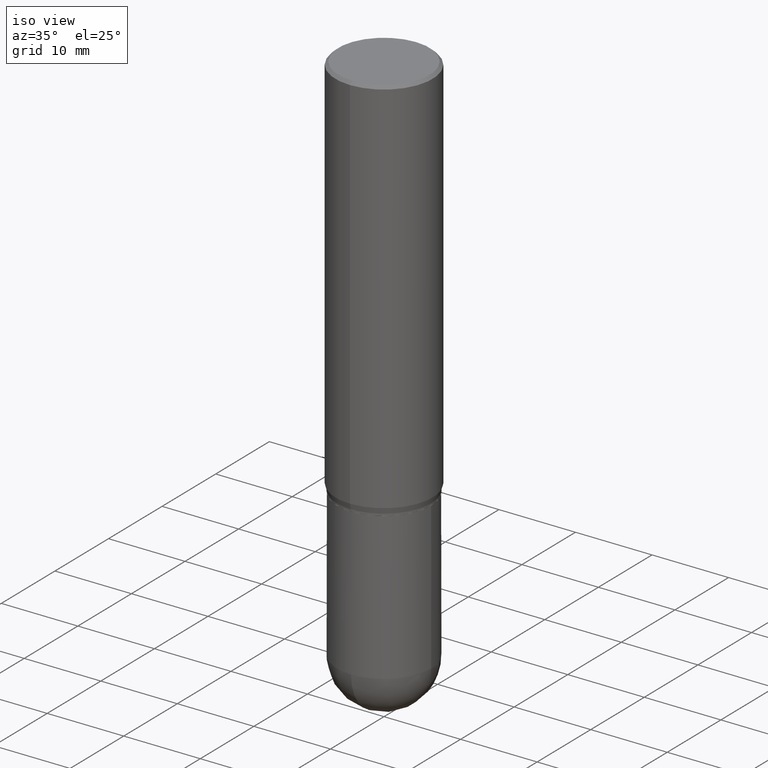
[diagram: clean part render]
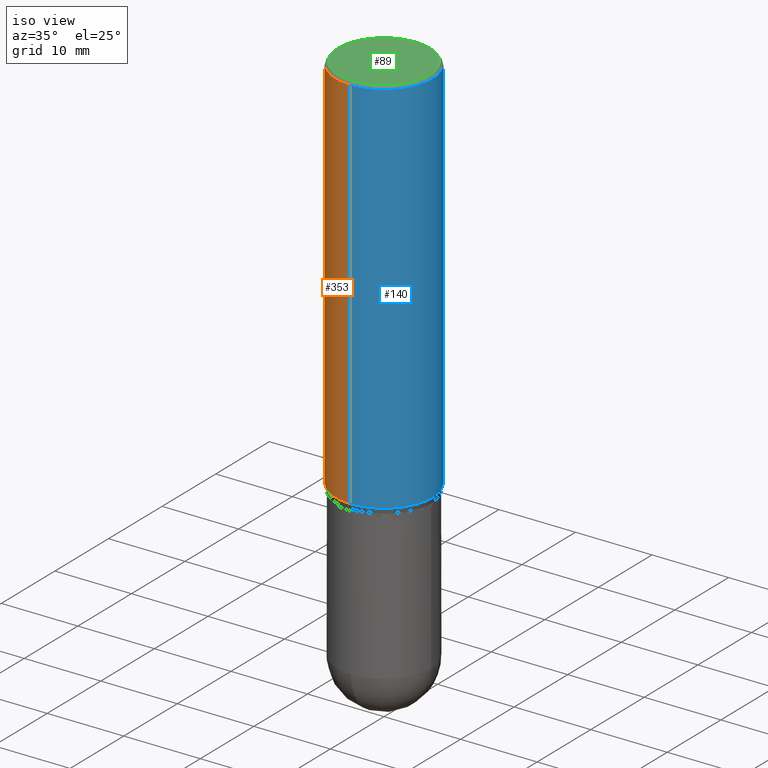
[diagram: same view with three faces highlighted in distinct colors, each labeled with its STEP entity id]
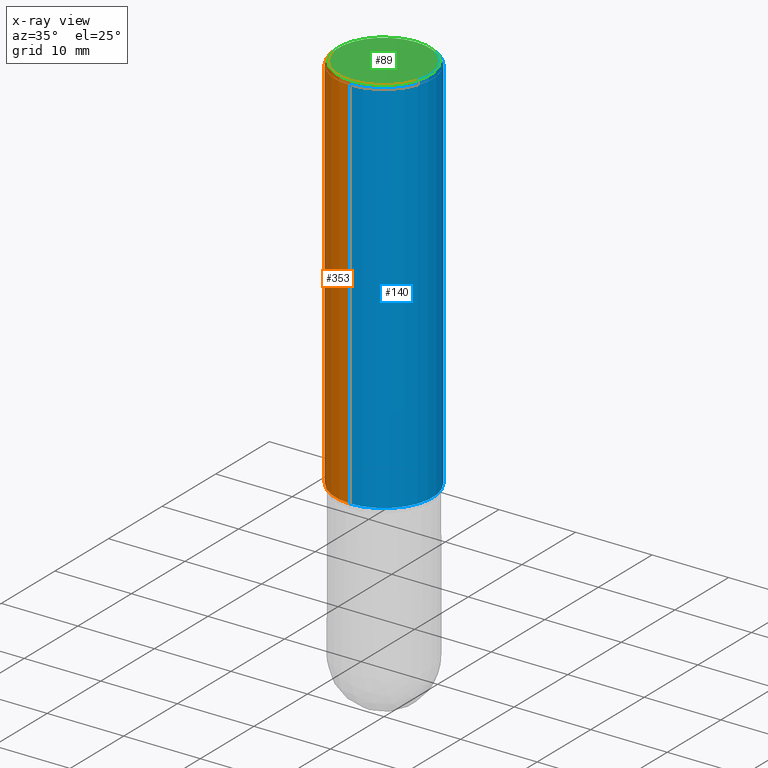
[diagram: x-ray of the same camera — body ghosted, the three highlighted faces saturated]
A machine part, iso view with three faces highlighted in distinct colors.
The next image is the same camera in x-ray (body ghosted, the three faces saturated) — at least one of them is partly hidden behind the body in this view.
Their STEP definitions:

[orange] entity #353 — the highlighted cylindrical surface (partial cylindrical patch) has radius 6.35 mm, axis along (-0, 0, 1).
#16 = DIRECTION ( 'NONE',  ( -6.982962677686265922E-15, -1.000000000000000000, 3.491643216902136408E-15 ) ) ;
#50 = CARTESIAN_POINT ( 'NONE',  ( 3.668333458171462749E-31, -5.237035484435728604E-17, -0.01500000000000025445 ) ) ;
#53 = DIRECTION ( 'NONE',  ( -2.445555638780933781E-29, 3.491356989623759642E-15, 1.000000000000000000 ) ) ;
#54 = DIRECTION ( 'NONE',  ( -6.982962677686265922E-15, -1.000000000000000000, 3.278217592397115862E-15 ) ) ;
#63 = ORIENTED_EDGE ( 'NONE', *, *, #177, .T. ) ;
#65 = VERTEX_POINT ( 'NONE', #318 ) ;
#66 = CARTESIAN_POINT ( 'NONE',  ( -1.745740669421565889E-15, -0.2500000000000000555, -0.01499999999999938188 ) ) ;
#83 = DIRECTION ( 'NONE',  ( -2.445555638780933781E-29, 3.491356989623759642E-15, 1.000000000000000000 ) ) ;
#86 = VECTOR ( 'NONE', #493, 39.37007874015748143 ) ;
#98 = EDGE_CURVE ( 'NONE', #376, #170, #492, .T. ) ;
#113 = LINE ( 'NONE', #227, #256 ) ;
#125 = CIRCLE ( 'NONE', #439, 0.2500000000000000000 ) ;
#139 = LINE ( 'NONE', #304, #86 ) ;
#170 = VERTEX_POINT ( 'NONE', #66 ) ;
#177 = EDGE_CURVE ( 'NONE', #65, #170, #113, .T. ) ;
#182 = DIRECTION ( 'NONE',  ( -2.445555638780933781E-29, 3.491356989623759247E-15, 1.000000000000000000 ) ) ;
#227 = CARTESIAN_POINT ( 'NONE',  ( -1.745740669421566480E-15, -0.2500000000000000000, 8.728392474059399104E-16 ) ) ;
#235 = DIRECTION ( 'NONE',  ( -2.445555638780933781E-29, 3.491356989623759642E-15, 1.000000000000000000 ) ) ;
#240 = FACE_OUTER_BOUND ( 'NONE', #511, .T. ) ;
#252 = CARTESIAN_POINT ( 'NONE',  ( 1.776356839400298585E-15, 0.2499999999999999167, -0.01500000000000112702 ) ) ;
#256 = VECTOR ( 'NONE', #182, 39.37007874015748143 ) ;
#264 = ORIENTED_EDGE ( 'NONE', *, *, #367, .T. ) ;
#276 = CYLINDRICAL_SURFACE ( 'NONE', #416, 0.2500000000000000000 ) ;
#297 = CARTESIAN_POINT ( 'NONE',  ( 1.776356839400298191E-15, 0.2499999999999931721, -1.960890003700963780 ) ) ;
#304 = CARTESIAN_POINT ( 'NONE',  ( 1.776356839400250267E-15, 0.2500000000000000000, -8.728392474059399104E-16 ) ) ;
#318 = CARTESIAN_POINT ( 'NONE',  ( -1.745740669421518360E-15, -0.2500000000000068279, -1.960890003700962225 ) ) ;
#350 = CARTESIAN_POINT ( 'NONE',  ( 4.795465605580055737E-29, -6.846167020304717561E-15, -1.960890003700963113 ) ) ;
#353 = ADVANCED_FACE ( 'NONE', ( #240 ), #276, .T. ) ;
#367 = EDGE_CURVE ( 'NONE', #508, #65, #125, .T. ) ;
#376 = VERTEX_POINT ( 'NONE', #252 ) ;
#382 = ORIENTED_EDGE ( 'NONE', *, *, #484, .F. ) ;
#389 = ORIENTED_EDGE ( 'NONE', *, *, #98, .F. ) ;
#393 = DIRECTION ( 'NONE',  ( -6.982962677686265922E-15, -1.000000000000000000, 3.491356989623759642E-15 ) ) ;
#403 = CARTESIAN_POINT ( 'NONE',  ( 0.000000000000000000, 0.000000000000000000, 0.000000000000000000 ) ) ;
#416 = AXIS2_PLACEMENT_3D ( 'NONE', #403, #83, #393 ) ;
#438 = AXIS2_PLACEMENT_3D ( 'NONE', #50, #53, #16 ) ;
#439 = AXIS2_PLACEMENT_3D ( 'NONE', #350, #235, #54 ) ;
#484 = EDGE_CURVE ( 'NONE', #508, #376, #139, .T. ) ;
#492 = CIRCLE ( 'NONE', #438, 0.2500000000000000000 ) ;
#493 = DIRECTION ( 'NONE',  ( -2.445555638780933781E-29, 3.491356989623759247E-15, 1.000000000000000000 ) ) ;
#508 = VERTEX_POINT ( 'NONE', #297 ) ;
#511 = EDGE_LOOP ( 'NONE', ( #382, #264, #63, #389 ) ) ;

[blue] entity #140 — the highlighted cylindrical surface (partial cylindrical patch) has radius 6.35 mm, axis along (-0, 0, 1).
#3 = CIRCLE ( 'NONE', #286, 0.2500000000000000000 ) ;
#21 = DIRECTION ( 'NONE',  ( -2.445555638780933781E-29, 3.491356989623759642E-15, 1.000000000000000000 ) ) ;
#22 = AXIS2_PLACEMENT_3D ( 'NONE', #381, #26, #341 ) ;
#26 = DIRECTION ( 'NONE',  ( -2.445555638780933781E-29, 3.491356989623759642E-15, 1.000000000000000000 ) ) ;
#65 = VERTEX_POINT ( 'NONE', #318 ) ;
#66 = CARTESIAN_POINT ( 'NONE',  ( -1.745740669421565889E-15, -0.2500000000000000555, -0.01499999999999938188 ) ) ;
#70 = FACE_OUTER_BOUND ( 'NONE', #150, .T. ) ;
#79 = CIRCLE ( 'NONE', #22, 0.2500000000000000000 ) ;
#86 = VECTOR ( 'NONE', #493, 39.37007874015748143 ) ;
#113 = LINE ( 'NONE', #227, #256 ) ;
#133 = CARTESIAN_POINT ( 'NONE',  ( 0.000000000000000000, 0.000000000000000000, 0.000000000000000000 ) ) ;
#139 = LINE ( 'NONE', #304, #86 ) ;
#140 = ADVANCED_FACE ( 'NONE', ( #70 ), #468, .T. ) ;
#150 = EDGE_LOOP ( 'NONE', ( #426, #298, #307, #505 ) ) ;
#170 = VERTEX_POINT ( 'NONE', #66 ) ;
#177 = EDGE_CURVE ( 'NONE', #65, #170, #113, .T. ) ;
#182 = DIRECTION ( 'NONE',  ( -2.445555638780933781E-29, 3.491356989623759247E-15, 1.000000000000000000 ) ) ;
#198 = EDGE_CURVE ( 'NONE', #170, #376, #3, .T. ) ;
#227 = CARTESIAN_POINT ( 'NONE',  ( -1.745740669421566480E-15, -0.2500000000000000000, 8.728392474059399104E-16 ) ) ;
#252 = CARTESIAN_POINT ( 'NONE',  ( 1.776356839400298585E-15, 0.2499999999999999167, -0.01500000000000112702 ) ) ;
#256 = VECTOR ( 'NONE', #182, 39.37007874015748143 ) ;
#265 = CARTESIAN_POINT ( 'NONE',  ( 3.668333458171462749E-31, -5.237035484435728604E-17, -0.01500000000000025445 ) ) ;
#285 = DIRECTION ( 'NONE',  ( -6.982962677686265922E-15, -1.000000000000000000, 3.491356989623759642E-15 ) ) ;
#286 = AXIS2_PLACEMENT_3D ( 'NONE', #265, #327, #339 ) ;
#297 = CARTESIAN_POINT ( 'NONE',  ( 1.776356839400298191E-15, 0.2499999999999931721, -1.960890003700963780 ) ) ;
#298 = ORIENTED_EDGE ( 'NONE', *, *, #484, .T. ) ;
#304 = CARTESIAN_POINT ( 'NONE',  ( 1.776356839400250267E-15, 0.2500000000000000000, -8.728392474059399104E-16 ) ) ;
#307 = ORIENTED_EDGE ( 'NONE', *, *, #198, .F. ) ;
#318 = CARTESIAN_POINT ( 'NONE',  ( -1.745740669421518360E-15, -0.2500000000000068279, -1.960890003700962225 ) ) ;
#327 = DIRECTION ( 'NONE',  ( -2.445555638780933781E-29, 3.491356989623759642E-15, 1.000000000000000000 ) ) ;
#339 = DIRECTION ( 'NONE',  ( -6.982962677686265922E-15, -1.000000000000000000, 3.491643216902136408E-15 ) ) ;
#341 = DIRECTION ( 'NONE',  ( -6.982962677686265922E-15, -1.000000000000000000, 3.278217592397115862E-15 ) ) ;
#364 = AXIS2_PLACEMENT_3D ( 'NONE', #133, #21, #285 ) ;
#376 = VERTEX_POINT ( 'NONE', #252 ) ;
#381 = CARTESIAN_POINT ( 'NONE',  ( 4.795465605580055737E-29, -6.846167020304717561E-15, -1.960890003700963113 ) ) ;
#426 = ORIENTED_EDGE ( 'NONE', *, *, #461, .T. ) ;
#461 = EDGE_CURVE ( 'NONE', #65, #508, #79, .T. ) ;
#468 = CYLINDRICAL_SURFACE ( 'NONE', #364, 0.2500000000000000000 ) ;
#484 = EDGE_CURVE ( 'NONE', #508, #376, #139, .T. ) ;
#493 = DIRECTION ( 'NONE',  ( -2.445555638780933781E-29, 3.491356989623759247E-15, 1.000000000000000000 ) ) ;
#505 = ORIENTED_EDGE ( 'NONE', *, *, #177, .F. ) ;
#508 = VERTEX_POINT ( 'NONE', #297 ) ;

[green] entity #89 — the highlighted planar face has unit normal (0, -0, -1).
#10 = FACE_OUTER_BOUND ( 'NONE', #345, .T. ) ;
#56 = EDGE_CURVE ( 'NONE', #154, #78, #346, .T. ) ;
#78 = VERTEX_POINT ( 'NONE', #355 ) ;
#88 = CARTESIAN_POINT ( 'NONE',  ( 1.640996229256272519E-15, 0.2349999999999999867, -9.479993275612526282E-16 ) ) ;
#89 = ADVANCED_FACE ( 'NONE', ( #10 ), #445, .F. ) ;
#110 = EDGE_CURVE ( 'NONE', #78, #154, #167, .T. ) ;
#154 = VERTEX_POINT ( 'NONE', #247 ) ;
#167 = CIRCLE ( 'NONE', #188, 0.2349999999999999867 ) ;
#188 = AXIS2_PLACEMENT_3D ( 'NONE', #363, #317, #480 ) ;
#204 = DIRECTION ( 'NONE',  ( 6.982962677686265922E-15, 1.000000000000000000, -3.491356989623759247E-15 ) ) ;
#247 = CARTESIAN_POINT ( 'NONE',  ( -1.663670764459595899E-15, -0.2349999999999999867, 5.654080225622448847E-16 ) ) ;
#317 = DIRECTION ( 'NONE',  ( -2.445555638780933781E-29, 3.491356989623759642E-15, 1.000000000000000000 ) ) ;
#321 = DIRECTION ( 'NONE',  ( -6.982962677686266711E-15, -1.000000000000000000, 3.491356989623759642E-15 ) ) ;
#345 = EDGE_LOOP ( 'NONE', ( #412, #501 ) ) ;
#346 = CIRCLE ( 'NONE', #407, 0.2349999999999999867 ) ;
#355 = CARTESIAN_POINT ( 'NONE',  ( 1.693368449338919598E-15, 0.2349999999999999867, -1.075529762560922139E-15 ) ) ;
#363 = CARTESIAN_POINT ( 'NONE',  ( 6.237655488592530881E-45, -8.905085512517078143E-31, -2.550608699993385778E-16 ) ) ;
#366 = DIRECTION ( 'NONE',  ( -2.445555638780933781E-29, 3.491356989623759642E-15, 1.000000000000000000 ) ) ;
#405 = DIRECTION ( 'NONE',  ( 2.445555638780933781E-29, -3.491356989623759247E-15, -1.000000000000000000 ) ) ;
#407 = AXIS2_PLACEMENT_3D ( 'NONE', #477, #366, #321 ) ;
#412 = ORIENTED_EDGE ( 'NONE', *, *, #110, .T. ) ;
#415 = AXIS2_PLACEMENT_3D ( 'NONE', #88, #405, #204 ) ;
#445 = PLANE ( 'NONE',  #415 ) ;
#477 = CARTESIAN_POINT ( 'NONE',  ( 6.237655488592530881E-45, -8.905085512517078143E-31, -2.550608699993385778E-16 ) ) ;
#480 = DIRECTION ( 'NONE',  ( -6.982962677686266711E-15, -1.000000000000000000, 3.491356989623759642E-15 ) ) ;
#501 = ORIENTED_EDGE ( 'NONE', *, *, #56, .T. ) ;